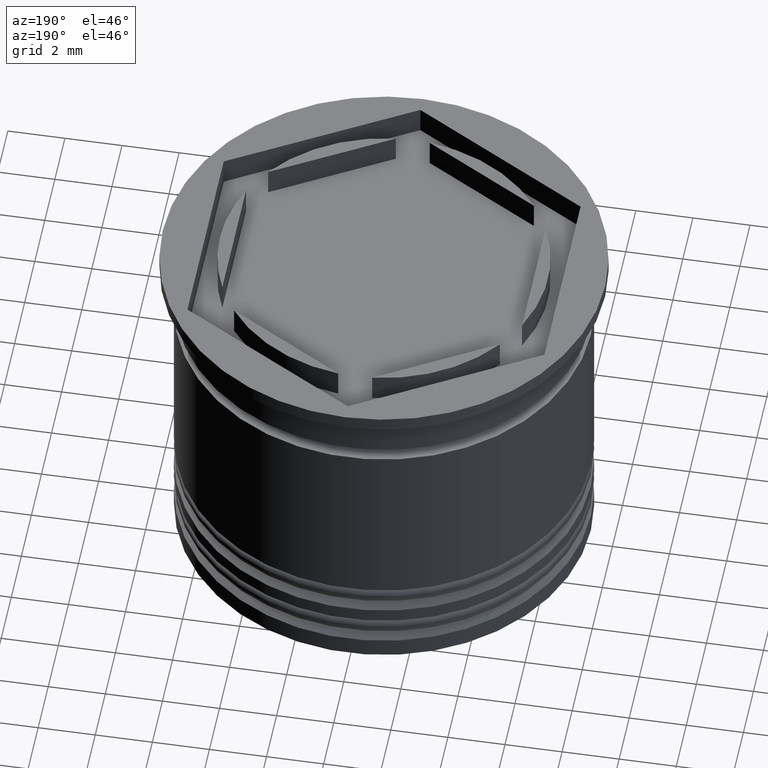
[diagram: clean part render]
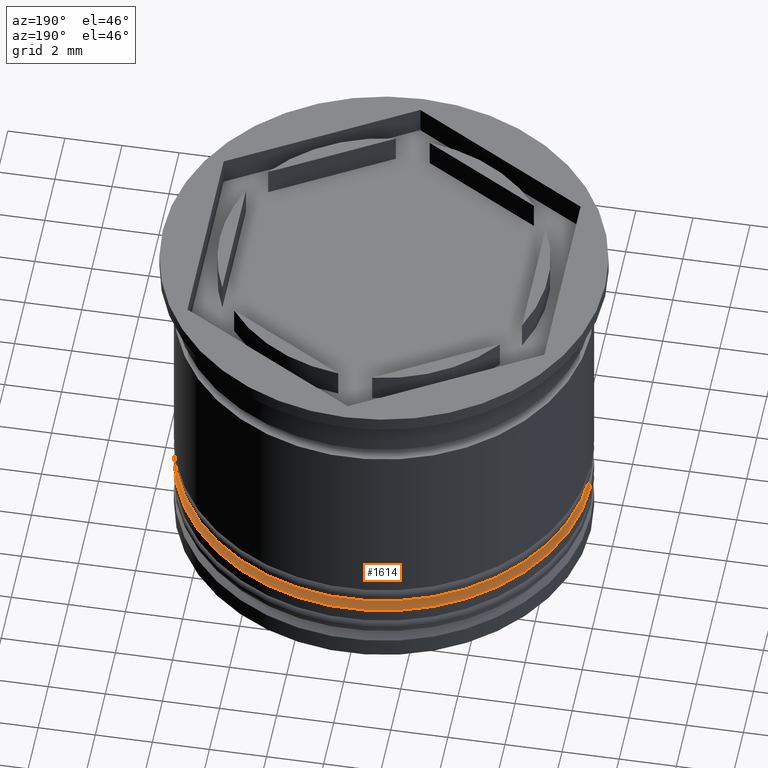
[diagram: same view with one face highlighted and labeled with its STEP entity id]
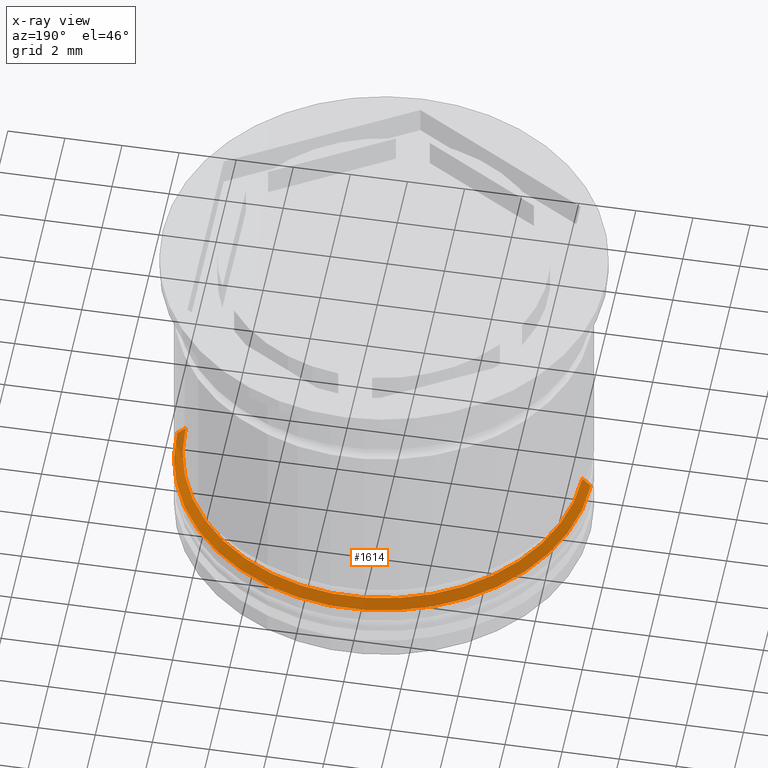
[diagram: x-ray of the same camera — body ghosted, the highlighted face saturated]
A machine part, auxiliary view. The second image highlights one B-rep face of the part: STEP entity #1614.
The next image is the same camera in x-ray: the body ghosted, the highlighted face saturated — about 2% of this face is hidden behind the body in this view.
In plain terms, the highlighted conical surface has half-angle 45 deg.
Its self-contained STEP definition (entity closure, byte-faithful):
#70 = VERTEX_POINT ( 'NONE', #1142 ) ;
#143 = DIRECTION ( 'NONE',  ( -0.7071067811865512365, 0.000000000000000000, -0.7071067811865439090 ) ) ;
#197 = DIRECTION ( 'NONE',  ( 0.000000000000000000, 0.000000000000000000, -1.000000000000000000 ) ) ;
#257 = EDGE_CURVE ( 'NONE', #70, #525, #899, .T. ) ;
#263 = DIRECTION ( 'NONE',  ( -0.000000000000000000, -0.000000000000000000, 1.000000000000000000 ) ) ;
#298 = CARTESIAN_POINT ( 'NONE',  ( -6.749999999999990230, 0.000000000000000000, -9.500000000000000000 ) ) ;
#317 = DIRECTION ( 'NONE',  ( -1.000000000000000000, 0.000000000000000000, 0.000000000000000000 ) ) ;
#339 = CIRCLE ( 'NONE', #1504, 7.249999999999999112 ) ;
#422 = ORIENTED_EDGE ( 'NONE', *, *, #257, .F. ) ;
#472 = ORIENTED_EDGE ( 'NONE', *, *, #1230, .F. ) ;
#513 = LINE ( 'NONE', #976, #1442 ) ;
#525 = VERTEX_POINT ( 'NONE', #1280 ) ;
#538 = ORIENTED_EDGE ( 'NONE', *, *, #1161, .F. ) ;
#612 = CARTESIAN_POINT ( 'NONE',  ( 0.000000000000000000, 0.000000000000000000, -9.700000000000006395 ) ) ;
#620 = CARTESIAN_POINT ( 'NONE',  ( 0.000000000000000000, 0.000000000000000000, -10.00000000000000355 ) ) ;
#746 = ORIENTED_EDGE ( 'NONE', *, *, #1376, .T. ) ;
#899 = LINE ( 'NONE', #298, #1763 ) ;
#976 = CARTESIAN_POINT ( 'NONE',  ( 6.749999999999990230, 8.266365894244622500E-16, -9.500000000000000000 ) ) ;
#1047 = CONICAL_SURFACE ( 'NONE', #1369, 6.749999999999990230, 0.7853981633974533860 ) ;
#1106 = CIRCLE ( 'NONE', #1973, 6.950000000000000178 ) ;
#1142 = CARTESIAN_POINT ( 'NONE',  ( -6.950000000000000178, 8.511295254074105418E-16, -9.700000000000006395 ) ) ;
#1161 = EDGE_CURVE ( 'NONE', #1582, #70, #1106, .T. ) ;
#1164 = CARTESIAN_POINT ( 'NONE',  ( 7.249999999999999112, 0.000000000000000000, -10.00000000000000355 ) ) ;
#1230 = EDGE_CURVE ( 'NONE', #525, #1403, #339, .T. ) ;
#1265 = FACE_OUTER_BOUND ( 'NONE', #1656, .T. ) ;
#1280 = CARTESIAN_POINT ( 'NONE',  ( -7.249999999999999112, 8.878689293818310074E-16, -10.00000000000000355 ) ) ;
#1369 = AXIS2_PLACEMENT_3D ( 'NONE', #1587, #197, #317 ) ;
#1375 = DIRECTION ( 'NONE',  ( 1.000000000000000000, 0.000000000000000000, 0.000000000000000000 ) ) ;
#1376 = EDGE_CURVE ( 'NONE', #1582, #1403, #513, .T. ) ;
#1403 = VERTEX_POINT ( 'NONE', #1164 ) ;
#1442 = VECTOR ( 'NONE', #1602, 1000.000000000000000 ) ;
#1504 = AXIS2_PLACEMENT_3D ( 'NONE', #620, #1697, #1375 ) ;
#1582 = VERTEX_POINT ( 'NONE', #1850 ) ;
#1587 = CARTESIAN_POINT ( 'NONE',  ( 0.000000000000000000, 0.000000000000000000, -9.500000000000000000 ) ) ;
#1602 = DIRECTION ( 'NONE',  ( 0.7071067811865512365, 8.659560562354978464E-17, -0.7071067811865439090 ) ) ;
#1614 = ADVANCED_FACE ( 'NONE', ( #1265 ), #1047, .T. ) ;
#1656 = EDGE_LOOP ( 'NONE', ( #538, #746, #472, #422 ) ) ;
#1683 = DIRECTION ( 'NONE',  ( -1.000000000000000000, 0.000000000000000000, 0.000000000000000000 ) ) ;
#1697 = DIRECTION ( 'NONE',  ( 0.000000000000000000, 0.000000000000000000, -1.000000000000000000 ) ) ;
#1763 = VECTOR ( 'NONE', #143, 1000.000000000000000 ) ;
#1850 = CARTESIAN_POINT ( 'NONE',  ( 6.950000000000000178, 0.000000000000000000, -9.700000000000006395 ) ) ;
#1973 = AXIS2_PLACEMENT_3D ( 'NONE', #612, #263, #1683 ) ;